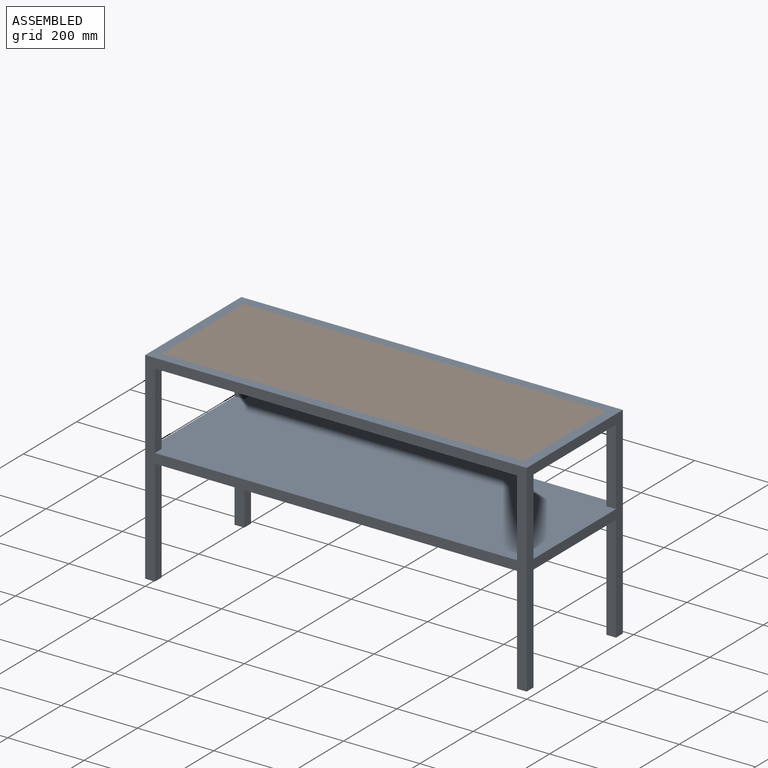
[diagram: assembled view]
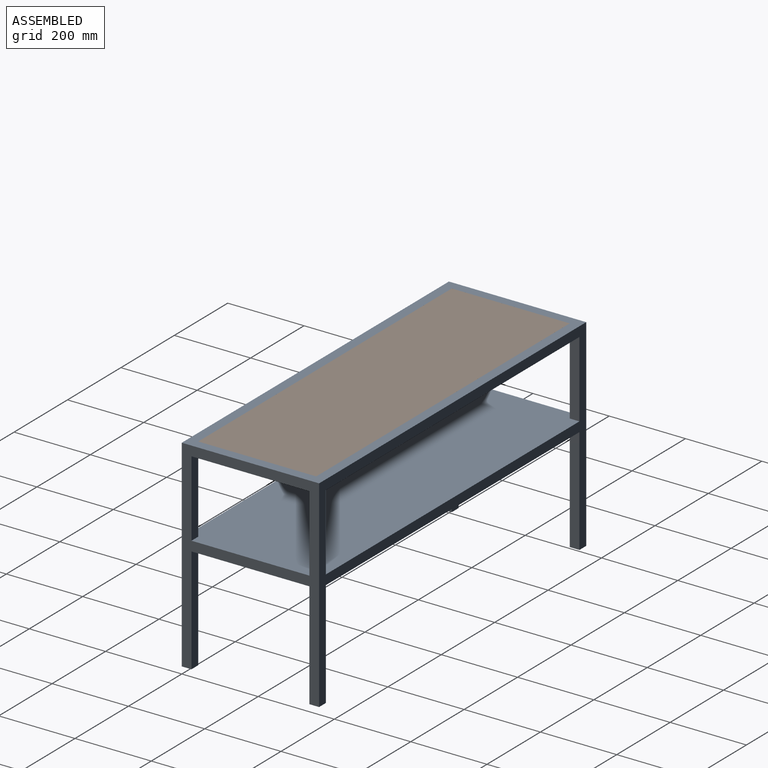
[diagram: assembled view, second angle]
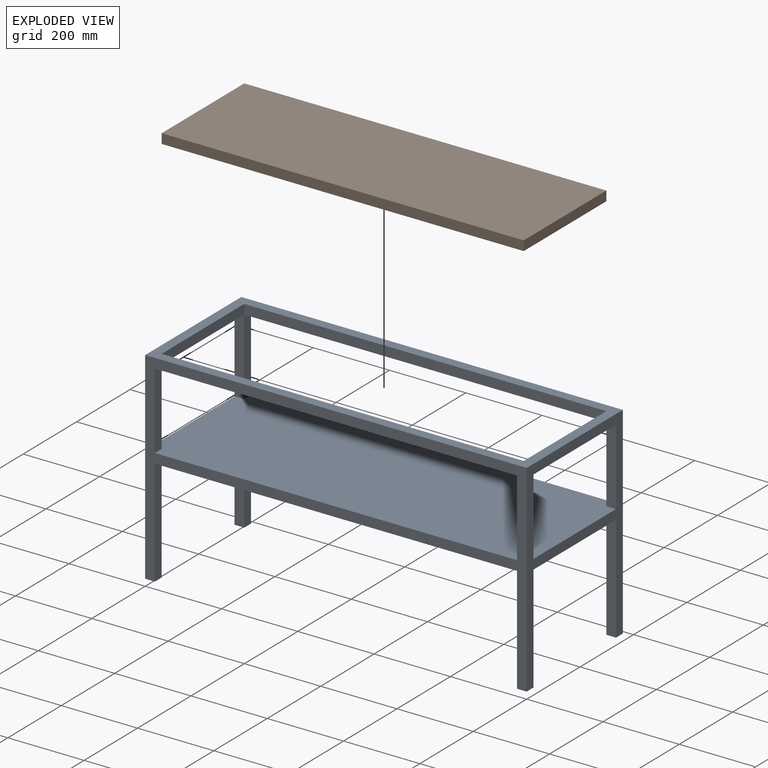
[diagram: exploded view]
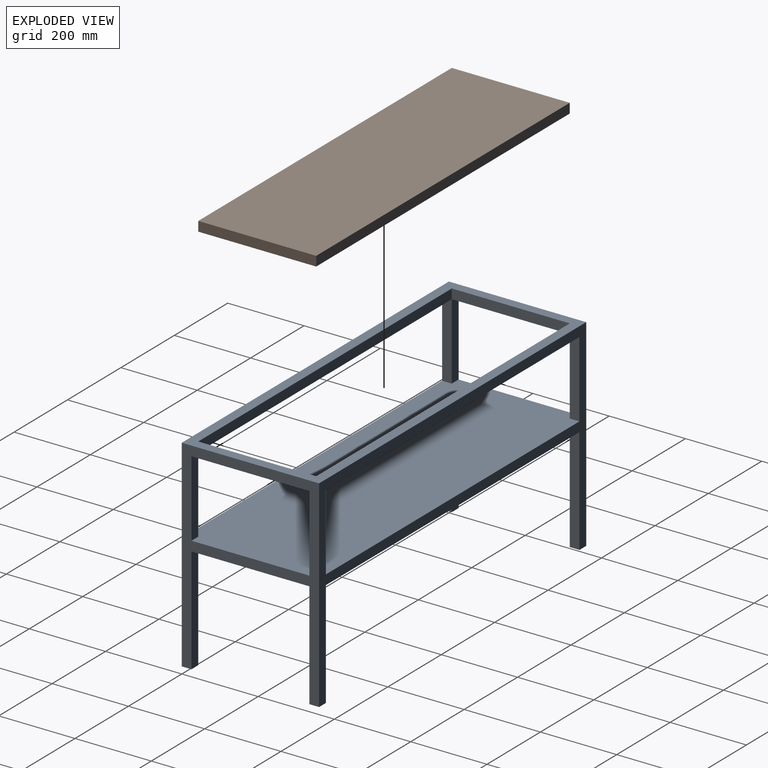
[diagram: exploded view, second angle]
ASSEMBLY  parts=2 mates=3
PART A: 35 faces, bbox 1000x360x530 mm
  f0: plane 200x25.4mm, normal (0,-1,0), area 5080mm2, adj f1,f11,f32,f34
  f1: plane 200x25.4mm, normal (1,0,0), area 5080mm2, adj f0,f10,f30,f34
  f2: plane 200x25.4mm, normal (0,1,0), area 5080mm2, adj f3,f11,f32,f34
  f3: plane 200x25.4mm, normal (1,0,0), area 5080mm2, adj f2,f18,f28,f34
  f4: plane 200x25.4mm, normal (-1,0,0), area 5080mm2, adj f5,f10,f30,f34
  f5: plane 200x25.4mm, normal (0,-1,0), area 5080mm2, adj f4,f21,f29,f34
  f6: plane 200x25.4mm, normal (0,1,0), area 5080mm2, adj f7,f21,f29,f34
  f7: plane 200x25.4mm, normal (-1,0,0), area 5080mm2, adj f6,f18,f28,f34
  f8: plane 949.2x25.4mm, normal (0,-1,0), area 24109.7mm2, adj f13,f20,f30,f31
  f9: plane 279.2x25.4mm, normal (0,-1,0), area 7091.7mm2, adj f11,f12,f14,f33
  f10: plane 1000x530mm, normal (0,1,0), area 75143.4mm2, adj f1,f4,f11,f12,f13,f14,f21,f22
  f11: plane 530x360mm, normal (-1,0,0), area 42631.4mm2, adj f0,f2,f9,f10,f13,f14,f15,f18
  f12: plane 279.2x25.4mm, normal (1,0,0), area 7091.7mm2, adj f9,f10,f14,f33
  f13: plane 1000x360mm, normal (0,0,1), area 66507.4mm2, adj f8,f10,f11,f16,f18,f20,f21,f31
  f14: plane 25.4x25.4mm, normal (0,0,-1), area 645.2mm2, adj f9,f10,f11,f12
  f15: plane 279.2x25.4mm, normal (0,1,0), area 7091.7mm2, adj f11,f17,f19,f33
  f16: plane 949.2x25.4mm, normal (0,1,0), area 24109.7mm2, adj f13,f20,f28,f31
  f17: plane 279.2x25.4mm, normal (1,0,0), area 7091.7mm2, adj f15,f18,f19,f33
  f18: plane 1000x530mm, normal (0,-1,0), area 75143.4mm2, adj f3,f7,f11,f13,f17,f19,f21,f26
  f19: plane 25.4x25.4mm, normal (0,0,-1), area 645.2mm2, adj f11,f15,f17,f18
  f20: plane 309.2x25.4mm, normal (-1,0,0), area 7853.7mm2, adj f8,f13,f16,f29
  f21: plane 530x360mm, normal (1,0,0), area 42631.4mm2, adj f5,f6,f10,f13,f18,f23,f24,f25
  f22: plane 279.2x25.4mm, normal (-1,0,0), area 7091.7mm2, adj f10,f23,f24,f33
  f23: plane 279.2x25.4mm, normal (0,-1,0), area 7091.7mm2, adj f21,f22,f24,f33
  f24: plane 25.4x25.4mm, normal (0,0,-1), area 645.2mm2, adj f10,f21,f22,f23
  f25: plane 279.2x25.4mm, normal (0,1,0), area 7091.7mm2, adj f21,f26,f27,f33
  f26: plane 279.2x25.4mm, normal (-1,0,0), area 7091.7mm2, adj f18,f25,f27,f33
  f27: plane 25.4x25.4mm, normal (0,0,-1), area 645.2mm2, adj f18,f21,f25,f26
  f28: plane 949.2x25.4mm, normal (0,0,-1), area 24109.7mm2, adj f3,f7,f16,f18
  f29: plane 309.2x25.4mm, normal (0,0,-1), area 7853.7mm2, adj f5,f6,f20,f21
  f30: plane 949.2x25.4mm, normal (0,0,-1), area 24109.7mm2, adj f1,f4,f8,f10
  f31: plane 309.2x25.4mm, normal (1,0,0), area 7853.7mm2, adj f8,f13,f16,f32
  f32: plane 309.2x25.4mm, normal (0,0,-1), area 7853.7mm2, adj f0,f2,f11,f31
  f33: plane 1000x360mm, normal (0,0,-1), area 357419.4mm2, adj f9,f10,f11,f12,f15,f17,f18,f21
  f34: plane 1000x360mm, normal (0,0,1), area 357419.4mm2, adj f0,f1,f2,f3,f4,f5,f6,f7
PART B: 6 faces, bbox 949.2x309.2x25.4 mm
  f0: plane 309.19x25.4mm, normal (1,0,0), area 7853.5mm2, adj f1,f3,f4,f5
  f1: plane 949.2x25.4mm, normal (0,1,0), area 24109.6mm2, adj f0,f2,f4,f5
  f2: plane 309.19x25.4mm, normal (-1,0,0), area 7853.5mm2, adj f1,f3,f4,f5
  f3: plane 949.2x25.4mm, normal (0,-1,0), area 24109.6mm2, adj f0,f2,f4,f5
  f4: plane 949.2x309.19mm, normal (0,0,1), area 293486.5mm2, adj f0,f1,f2,f3
  f5: plane 949.2x309.19mm, normal (0,0,-1), area 293486.5mm2, adj f0,f1,f2,f3
PLACE A t=(-500,180,-530)mm
PLACE B t=(-500,180,-25.4)mm
MATE planar B.f4 <-> A.f13  axis (0,0,1) through (-500,180,0)mm
MATE planar B.f3 <-> A.f16  axis (0,-1,0) through (-500,25.4,-12.7)mm
MATE planar B.f0 <-> A.f20  axis (1,0,0) through (-25.4,180,-12.7)mm
